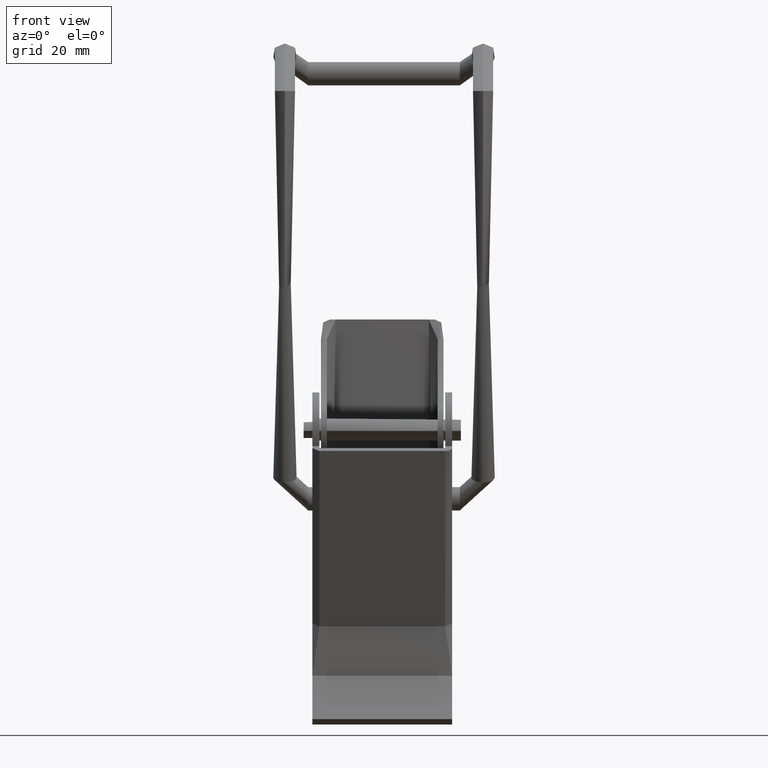
[diagram: clean part render]
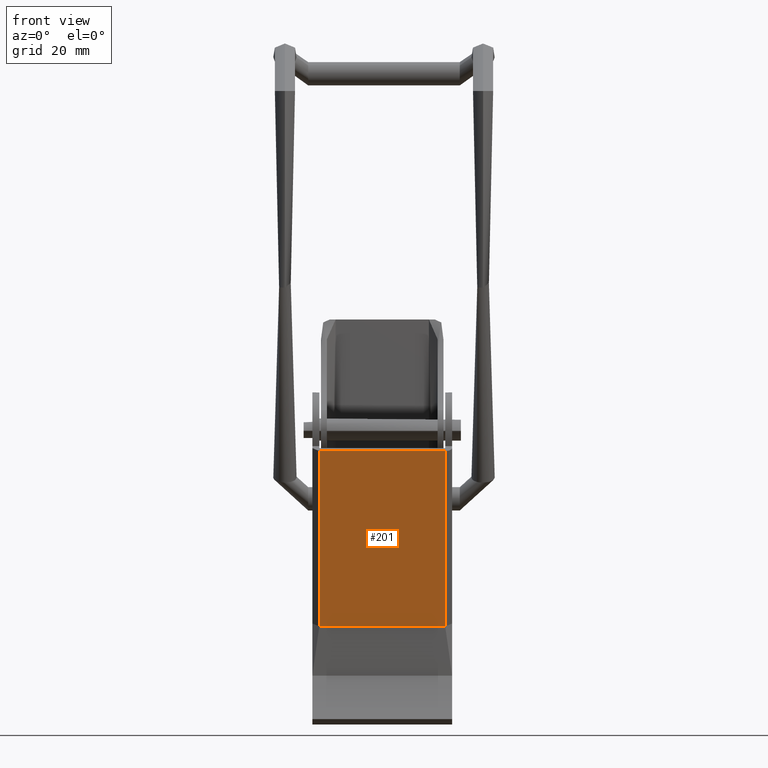
[diagram: same view with one face highlighted and labeled with its STEP entity id]
A machine part, front view. The second image highlights one B-rep face of the part: STEP entity #201.
In plain terms, the highlighted planar face has unit normal (0, 0.9069, 0.4214).
Its self-contained STEP definition (entity closure, byte-faithful):
#201=ADVANCED_FACE('',(#448),#447,.F.);
#447=PLANE('',#1466);
#448=FACE_OUTER_BOUND('',#1467,.T.);
#1463=CARTESIAN_POINT('',(-1.29599700000E+01,4.33984625812E+00,-3.72214171869E+01));
#1464=DIRECTION('',(-0.00000000000E+00,9.41112854522E-01,3.38092583552E-01));
#1465=DIRECTION('',(0.00000000000E+00,-3.38092583552E-01,9.41112854522E-01));
#1466=AXIS2_PLACEMENT_3D('',#1463,#1464,#1465);
#1467=EDGE_LOOP('',(#2324,#2325,#2326,#2327));
#2324=ORIENTED_EDGE('',*,*,#2863,.T.);
#2325=ORIENTED_EDGE('',*,*,#2833,.T.);
#2326=ORIENTED_EDGE('',*,*,#2806,.F.);
#2327=ORIENTED_EDGE('',*,*,#2830,.T.);
#2806=EDGE_CURVE('',#3176,#3177,#3178,.T.);
#2830=EDGE_CURVE('',#3176,#3322,#3341,.T.);
#2833=EDGE_CURVE('',#3347,#3177,#3360,.T.);
#2863=EDGE_CURVE('',#3322,#3347,#3560,.T.);
#3176=VERTEX_POINT('',#5071);
#3177=VERTEX_POINT('',#5072);
#3178=LINE('',#5073,#5074);
#3322=VERTEX_POINT('',#5192);
#3341=LINE('',#5220,#5221);
#3347=VERTEX_POINT('',#5223);
#3360=LINE('',#5251,#5252);
#3560=LINE('',#5463,#5464);
#5071=CARTESIAN_POINT('',(-1.08000000000E+01,-7.99938272939E+00,-2.87400000000E+00));
#5072=CARTESIAN_POINT('',(1.07997000000E+01,-7.99938272939E+00,-2.87400000000E+00));
#5073=CARTESIAN_POINT('',(-1.08000000000E+01,-7.99938272939E+00,-2.87400000000E+00));
#5074=VECTOR('',#5075,2.15997000000E+01);
#5075=DIRECTION('',(1.00000000000E+00,0.00000000000E+00,0.00000000000E+00));
#5192=CARTESIAN_POINT('',(-1.08000000000E+01,3.21809816834E+00,-3.40989247153E+01));
#5220=CARTESIAN_POINT('',(-1.08000000000E+01,-7.99938272939E+00,-2.87400000000E+00));
#5221=VECTOR('',#5222,3.31787251287E+01);
#5222=DIRECTION('',(0.00000000000E+00,3.38092583552E-01,-9.41112854522E-01));
#5223=CARTESIAN_POINT('',(1.07997000000E+01,3.21809816834E+00,-3.40989247153E+01));
#5251=CARTESIAN_POINT('',(1.07997000000E+01,3.21809816834E+00,-3.40989247153E+01));
#5252=VECTOR('',#5253,3.31787251287E+01);
#5253=DIRECTION('',(0.00000000000E+00,-3.38092583552E-01,9.41112854522E-01));
#5463=CARTESIAN_POINT('',(-1.08000000000E+01,3.21809816834E+00,-3.40989247153E+01));
#5464=VECTOR('',#5465,2.15997000000E+01);
#5465=DIRECTION('',(1.00000000000E+00,0.00000000000E+00,0.00000000000E+00));